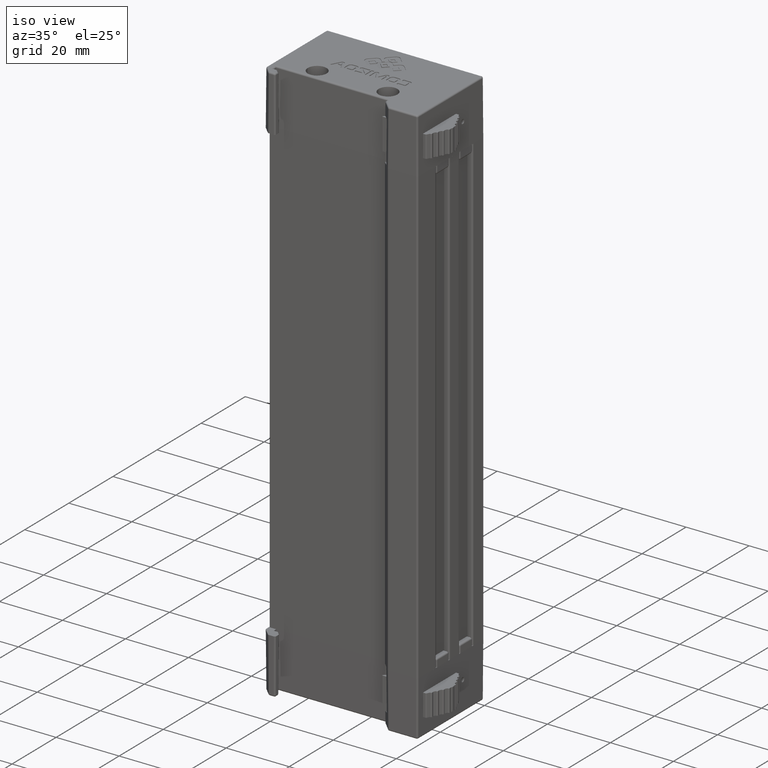
[diagram: clean part render]
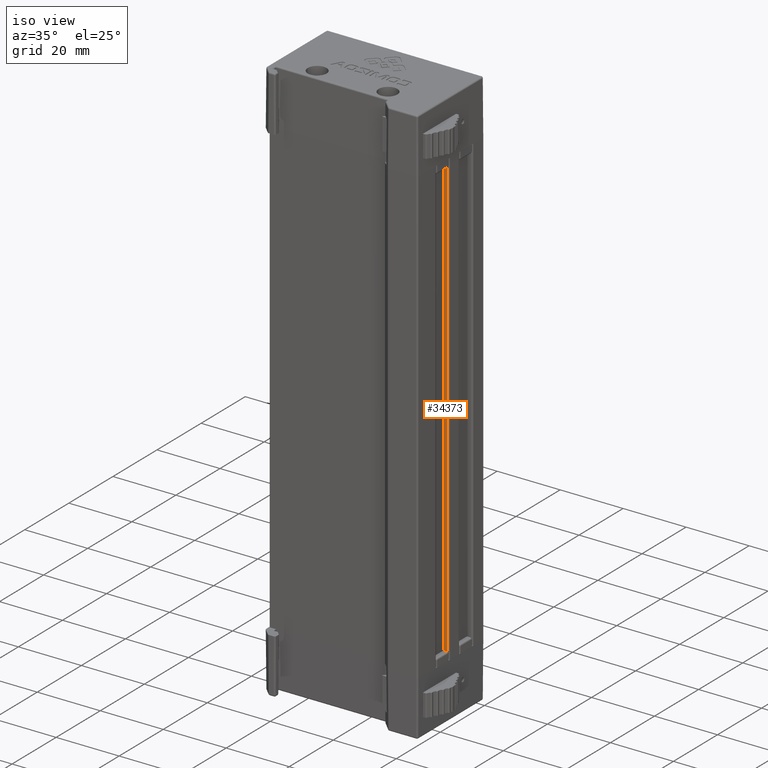
[diagram: same view with one face highlighted and labeled with its STEP entity id]
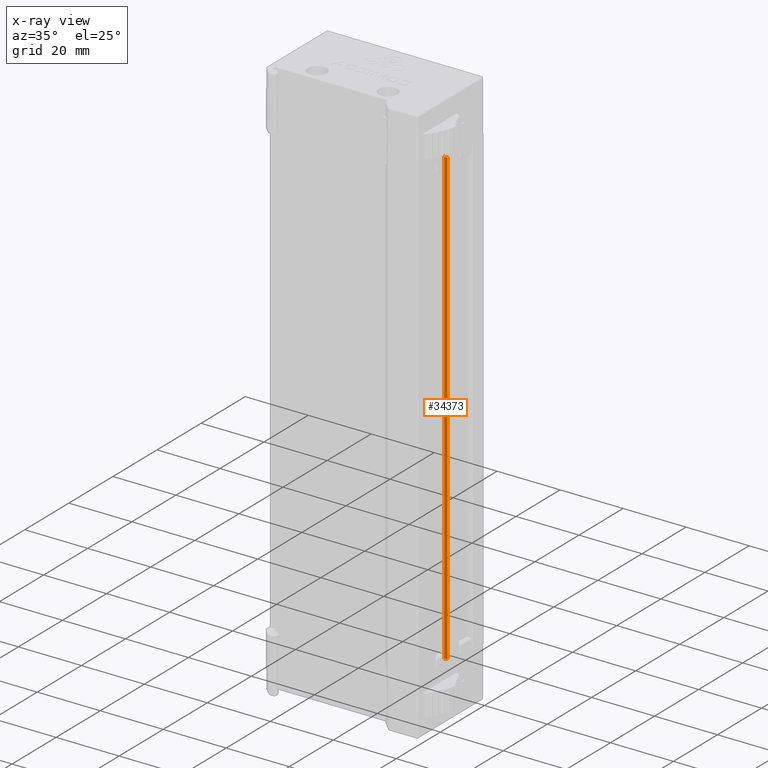
[diagram: x-ray of the same camera — body ghosted, the highlighted face saturated]
A machine part, iso view. The second image highlights one B-rep face of the part: STEP entity #34373.
The next image is the same camera in x-ray: the body ghosted, the highlighted face saturated — about 0% of this face is hidden behind the body in this view.
In plain terms, the highlighted planar face has unit normal (0, -1, 0).
Its self-contained STEP definition (entity closure, byte-faithful):
#1187 = VERTEX_POINT ( 'NONE', #11544 ) ;
#4553 = VERTEX_POINT ( 'NONE', #15354 ) ;
#4559 = VERTEX_POINT ( 'NONE', #15358 ) ;
#4728 = VERTEX_POINT ( 'NONE', #15471 ) ;
#11544 = CARTESIAN_POINT ( 'NONE',  ( 24.50000000000000000, -15.80000000000000100, -109.4999999999999900 ) ) ;
#15354 = CARTESIAN_POINT ( 'NONE',  ( 23.40000000000000200, -15.80000000000000100, 34.50000000000000000 ) ) ;
#15358 = CARTESIAN_POINT ( 'NONE',  ( 24.50000000000000000, -15.80000000000000100, 34.50000000000000000 ) ) ;
#15471 = CARTESIAN_POINT ( 'NONE',  ( 23.40000000000000200, -15.80000000000000100, -109.4999999999999900 ) ) ;
#17274 = EDGE_CURVE ( 'NONE', #4728, #1187, #24330, .T. ) ;
#17275 = EDGE_CURVE ( 'NONE', #4553, #4559, #24333, .T. ) ;
#17276 = EDGE_CURVE ( 'NONE', #4728, #4553, #24336, .T. ) ;
#17279 = EDGE_CURVE ( 'NONE', #1187, #4559, #24345, .T. ) ;
#20633 = ORIENTED_EDGE ( 'NONE', *, *, #17279, .T. ) ;
#20635 = ORIENTED_EDGE ( 'NONE', *, *, #17276, .F. ) ;
#20637 = ORIENTED_EDGE ( 'NONE', *, *, #17274, .T. ) ;
#20639 = ORIENTED_EDGE ( 'NONE', *, *, #17275, .F. ) ;
#24330 = LINE ( 'NONE', #24331, #26075 ) ;
#24331 = CARTESIAN_POINT ( 'NONE',  ( 23.40000000000000200, -15.80000000000000100, -109.4999999999999900 ) ) ;
#24332 = DIRECTION ( 'NONE',  ( 1.000000000000000000, 0.0000000000000000000, 0.0000000000000000000 ) ) ;
#24333 = LINE ( 'NONE', #24334, #26076 ) ;
#24334 = CARTESIAN_POINT ( 'NONE',  ( 23.40000000000000200, -15.80000000000000100, 34.50000000000000000 ) ) ;
#24335 = DIRECTION ( 'NONE',  ( 1.000000000000000000, 0.0000000000000000000, 0.0000000000000000000 ) ) ;
#24336 = LINE ( 'NONE', #24337, #26077 ) ;
#24337 = CARTESIAN_POINT ( 'NONE',  ( 23.40000000000000200, -15.80000000000000100, -109.4999999999999900 ) ) ;
#24338 = DIRECTION ( 'NONE',  ( 0.0000000000000000000, 0.0000000000000000000, 1.000000000000000000 ) ) ;
#24345 = LINE ( 'NONE', #24346, #26079 ) ;
#24346 = CARTESIAN_POINT ( 'NONE',  ( 24.50000000000000000, -15.80000000000000100, -109.4999999999999900 ) ) ;
#24347 = DIRECTION ( 'NONE',  ( 0.0000000000000000000, 0.0000000000000000000, 1.000000000000000000 ) ) ;
#26075 = VECTOR ( 'NONE', #24332, 1000.000000000000000 ) ;
#26076 = VECTOR ( 'NONE', #24335, 1000.000000000000000 ) ;
#26077 = VECTOR ( 'NONE', #24338, 1000.000000000000000 ) ;
#26079 = VECTOR ( 'NONE', #24347, 1000.000000000000000 ) ;
#28759 = FACE_OUTER_BOUND ( 'NONE', #34666, .T. ) ;
#28763 = AXIS2_PLACEMENT_3D ( 'NONE', #36230, #36231, #36232 ) ;
#34373 = ADVANCED_FACE ( 'NONE', ( #28759 ), #36229, .T. ) ;
#34666 = EDGE_LOOP ( 'NONE', ( #20639, #20635, #20637, #20633 ) ) ;
#36229 = PLANE ( 'NONE',  #28763 ) ;
#36230 = CARTESIAN_POINT ( 'NONE',  ( 23.40000000000000200, -15.80000000000000100, -109.4999999999999900 ) ) ;
#36231 = DIRECTION ( 'NONE',  ( 0.0000000000000000000, -1.000000000000000000, 0.0000000000000000000 ) ) ;
#36232 = DIRECTION ( 'NONE',  ( 0.0000000000000000000, -0.0000000000000000000, -1.000000000000000000 ) ) ;